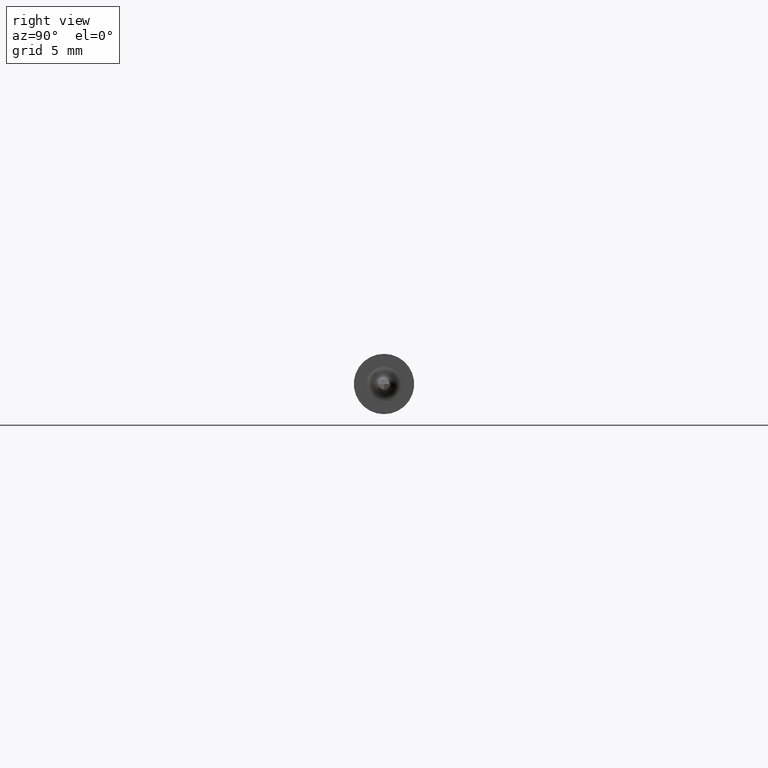
[diagram: clean part render]
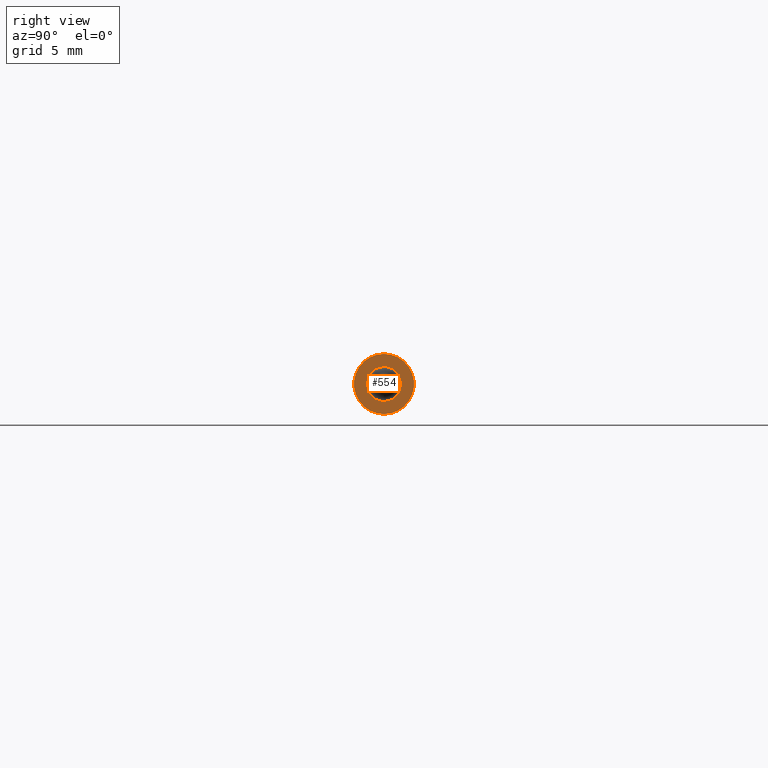
[diagram: same view with one face highlighted and labeled with its STEP entity id]
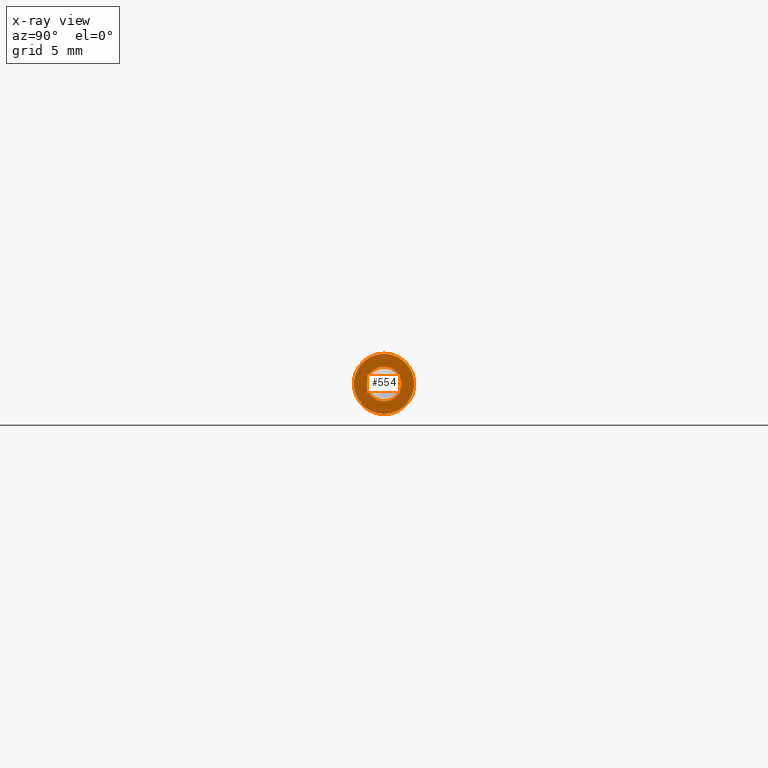
[diagram: x-ray of the same camera — body ghosted, the highlighted face saturated]
A machine part, right view. The second image highlights one B-rep face of the part: STEP entity #554.
The next image is the same camera in x-ray: the body ghosted, the highlighted face saturated — about 0% of this face is hidden behind the body in this view.
In plain terms, the highlighted planar face has unit normal (1, 0, 0).
Its self-contained STEP definition (entity closure, byte-faithful):
#27 = CARTESIAN_POINT ( 'NONE',  ( 1.350000000000000311, 0.000000000000000000, 0.06234999999999997489 ) ) ;
#31 = CARTESIAN_POINT ( 'NONE',  ( 1.350000000000000311, 0.000000000000000000, 0.000000000000000000 ) ) ;
#33 = EDGE_CURVE ( 'NONE', #446, #577, #234, .T. ) ;
#50 = VERTEX_POINT ( 'NONE', #27 ) ;
#98 = CARTESIAN_POINT ( 'NONE',  ( 1.350000000000000311, 0.1123499999999999638, 0.000000000000000000 ) ) ;
#103 = FACE_OUTER_BOUND ( 'NONE', #241, .T. ) ;
#112 = DIRECTION ( 'NONE',  ( 0.000000000000000000, 0.000000000000000000, 1.000000000000000000 ) ) ;
#114 = CARTESIAN_POINT ( 'NONE',  ( 1.350000000000000311, 0.000000000000000000, 0.000000000000000000 ) ) ;
#137 = VERTEX_POINT ( 'NONE', #690 ) ;
#141 = DIRECTION ( 'NONE',  ( -1.000000000000000000, -0.000000000000000000, -0.000000000000000000 ) ) ;
#158 = AXIS2_PLACEMENT_3D ( 'NONE', #404, #141, #522 ) ;
#214 = CIRCLE ( 'NONE', #222, 0.03599999999999999728 ) ;
#222 = AXIS2_PLACEMENT_3D ( 'NONE', #321, #389, #112 ) ;
#234 = CIRCLE ( 'NONE', #158, 0.03599999999999999728 ) ;
#235 = AXIS2_PLACEMENT_3D ( 'NONE', #98, #423, #313 ) ;
#236 = ORIENTED_EDGE ( 'NONE', *, *, #33, .T. ) ;
#241 = EDGE_LOOP ( 'NONE', ( #513, #306 ) ) ;
#304 = CIRCLE ( 'NONE', #421, 0.06234999999999997489 ) ;
#306 = ORIENTED_EDGE ( 'NONE', *, *, #564, .T. ) ;
#313 = DIRECTION ( 'NONE',  ( 0.000000000000000000, 0.000000000000000000, -1.000000000000000000 ) ) ;
#321 = CARTESIAN_POINT ( 'NONE',  ( 1.350000000000000311, 0.000000000000000000, 0.000000000000000000 ) ) ;
#328 = EDGE_CURVE ( 'NONE', #577, #446, #214, .T. ) ;
#334 = EDGE_CURVE ( 'NONE', #50, #137, #379, .T. ) ;
#371 = FACE_BOUND ( 'NONE', #562, .T. ) ;
#379 = CIRCLE ( 'NONE', #600, 0.06234999999999997489 ) ;
#389 = DIRECTION ( 'NONE',  ( -1.000000000000000000, -0.000000000000000000, -0.000000000000000000 ) ) ;
#404 = CARTESIAN_POINT ( 'NONE',  ( 1.350000000000000311, 0.000000000000000000, 0.000000000000000000 ) ) ;
#421 = AXIS2_PLACEMENT_3D ( 'NONE', #31, #528, #463 ) ;
#423 = DIRECTION ( 'NONE',  ( 1.000000000000000000, 0.000000000000000000, 0.000000000000000000 ) ) ;
#446 = VERTEX_POINT ( 'NONE', #608 ) ;
#463 = DIRECTION ( 'NONE',  ( 0.000000000000000000, 0.000000000000000000, -1.000000000000000000 ) ) ;
#479 = PLANE ( 'NONE',  #235 ) ;
#513 = ORIENTED_EDGE ( 'NONE', *, *, #334, .T. ) ;
#522 = DIRECTION ( 'NONE',  ( 0.000000000000000000, 0.000000000000000000, 1.000000000000000000 ) ) ;
#527 = ORIENTED_EDGE ( 'NONE', *, *, #328, .T. ) ;
#528 = DIRECTION ( 'NONE',  ( 1.000000000000000000, 0.000000000000000000, 0.000000000000000000 ) ) ;
#554 = ADVANCED_FACE ( 'NONE', ( #371, #103 ), #479, .T. ) ;
#562 = EDGE_LOOP ( 'NONE', ( #236, #527 ) ) ;
#564 = EDGE_CURVE ( 'NONE', #137, #50, #304, .T. ) ;
#577 = VERTEX_POINT ( 'NONE', #689 ) ;
#593 = DIRECTION ( 'NONE',  ( 1.000000000000000000, 0.000000000000000000, 0.000000000000000000 ) ) ;
#600 = AXIS2_PLACEMENT_3D ( 'NONE', #114, #593, #648 ) ;
#608 = CARTESIAN_POINT ( 'NONE',  ( 1.350000000000000311, 0.000000000000000000, 0.03599999999999999728 ) ) ;
#648 = DIRECTION ( 'NONE',  ( 0.000000000000000000, 0.000000000000000000, -1.000000000000000000 ) ) ;
#689 = CARTESIAN_POINT ( 'NONE',  ( 1.350000000000000311, 4.408728476930471799E-18, -0.03599999999999999728 ) ) ;
#690 = CARTESIAN_POINT ( 'NONE',  ( 1.350000000000000311, 7.635672792683743590E-18, -0.06234999999999997489 ) ) ;